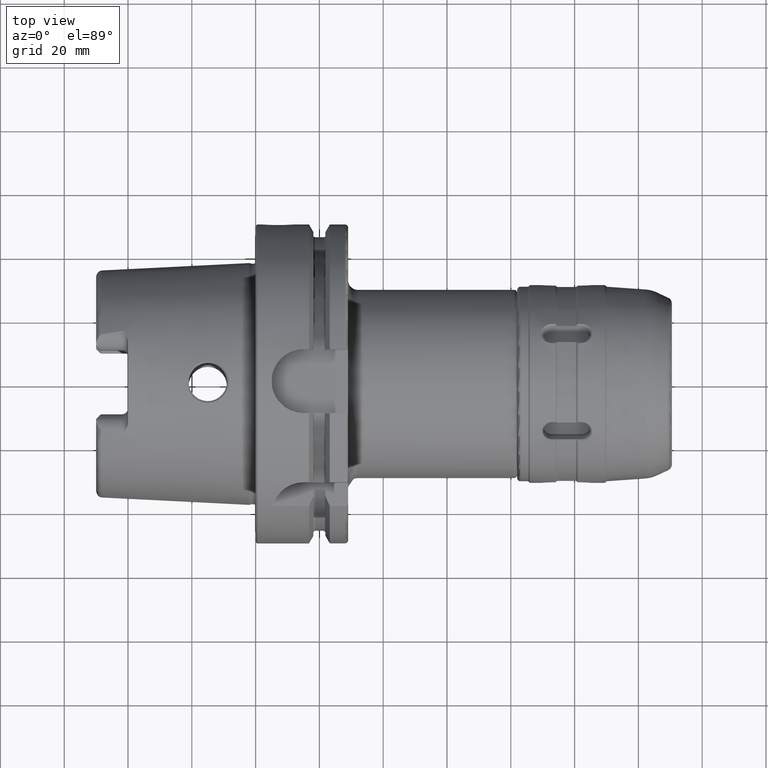
[diagram: clean part render]
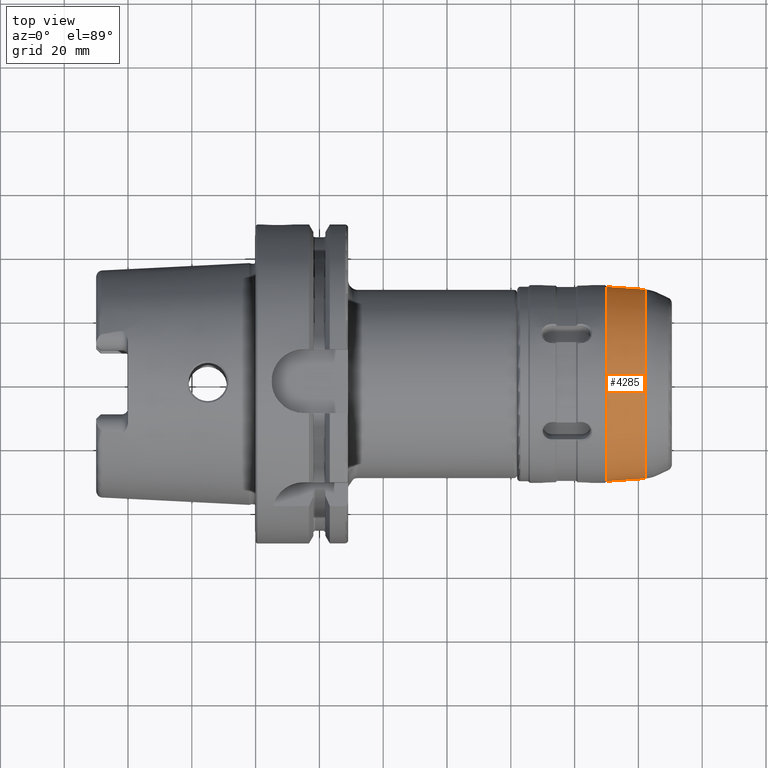
[diagram: same view with one face highlighted and labeled with its STEP entity id]
A machine part, top view. The second image highlights one B-rep face of the part: STEP entity #4285.
In plain terms, the highlighted conical surface has half-angle 4.072 deg.
Its self-contained STEP definition (entity closure, byte-faithful):
#223=CONICAL_SURFACE('',#4821,29.9991791209683,0.0710699913215307);
#573=LINE('',#9271,#814);
#814=VECTOR('',#6002,29.9991791209683);
#1100=FACE_OUTER_BOUND('',#1348,.T.);
#1348=EDGE_LOOP('',(#3954,#3955,#3956,#3957,#3958,#3959,#3960));
#1599=CIRCLE('',#4813,29.6295063174127);
#1600=CIRCLE('',#4814,29.6295063174127);
#1601=CIRCLE('',#4815,29.6295063174127);
#1606=CIRCLE('',#4822,30.5);
#1607=CIRCLE('',#4823,30.5);
#2045=VERTEX_POINT('',#9253);
#2046=VERTEX_POINT('',#9255);
#2047=VERTEX_POINT('',#9257);
#2051=VERTEX_POINT('',#9270);
#2052=VERTEX_POINT('',#9272);
#2688=EDGE_CURVE('',#2045,#2046,#1599,.T.);
#2689=EDGE_CURVE('',#2046,#2047,#1600,.T.);
#2690=EDGE_CURVE('',#2047,#2045,#1601,.T.);
#2696=EDGE_CURVE('',#2046,#2051,#573,.T.);
#2697=EDGE_CURVE('',#2051,#2052,#1606,.T.);
#2698=EDGE_CURVE('',#2052,#2051,#1607,.T.);
#3954=ORIENTED_EDGE('',*,*,#2690,.F.);
#3955=ORIENTED_EDGE('',*,*,#2689,.F.);
#3956=ORIENTED_EDGE('',*,*,#2696,.T.);
#3957=ORIENTED_EDGE('',*,*,#2697,.T.);
#3958=ORIENTED_EDGE('',*,*,#2698,.T.);
#3959=ORIENTED_EDGE('',*,*,#2696,.F.);
#3960=ORIENTED_EDGE('',*,*,#2688,.F.);
#4285=ADVANCED_FACE('',(#1100),#223,.T.);
#4813=AXIS2_PLACEMENT_3D('',#9256,#5983,#5984);
#4814=AXIS2_PLACEMENT_3D('',#9258,#5985,#5986);
#4815=AXIS2_PLACEMENT_3D('',#9259,#5987,#5988);
#4821=AXIS2_PLACEMENT_3D('',#9269,#6000,#6001);
#4822=AXIS2_PLACEMENT_3D('',#9273,#6003,#6004);
#4823=AXIS2_PLACEMENT_3D('',#9274,#6005,#6006);
#5983=DIRECTION('center_axis',(1.,0.,0.));
#5984=DIRECTION('ref_axis',(0.,-1.,3.06161699786838E-17));
#5985=DIRECTION('center_axis',(1.,0.,0.));
#5986=DIRECTION('ref_axis',(0.,-1.,3.06161699786838E-17));
#5987=DIRECTION('center_axis',(1.,0.,0.));
#5988=DIRECTION('ref_axis',(0.,-1.,3.06161699786838E-17));
#6000=DIRECTION('center_axis',(-1.,0.,0.));
#6001=DIRECTION('ref_axis',(0.,1.,0.));
#6002=DIRECTION('',(-0.997475590989153,-0.0710101780087896,-8.69623872053479E-18));
#6003=DIRECTION('center_axis',(1.,0.,0.));
#6004=DIRECTION('ref_axis',(0.,0.,-1.));
#6005=DIRECTION('center_axis',(1.,0.,0.));
#6006=DIRECTION('ref_axis',(0.,0.,-1.));
#9253=CARTESIAN_POINT('',(40.2277710722491,-3.62856800719357E-15,29.6295063174126));
#9255=CARTESIAN_POINT('',(40.2277710722491,-29.6295063174127,-3.62856800719357E-15));
#9256=CARTESIAN_POINT('Origin',(40.2277710722491,0.,-4.53571000899196E-15));
#9257=CARTESIAN_POINT('',(40.2277710722491,29.6295063174127,-1.81428400359678E-15));
#9258=CARTESIAN_POINT('Origin',(40.2277710722491,0.,-4.53571000899196E-15));
#9259=CARTESIAN_POINT('Origin',(40.2277710722491,0.,-4.53571000899196E-15));
#9269=CARTESIAN_POINT('Origin',(35.035,0.,0.));
#9270=CARTESIAN_POINT('',(28.,-30.5,-3.73517273739943E-15));
#9271=CARTESIAN_POINT('',(35.035,-29.9991791209683,-3.6738398687542E-15));
#9272=CARTESIAN_POINT('',(28.,30.5,0.));
#9273=CARTESIAN_POINT('Origin',(28.,0.,0.));
#9274=CARTESIAN_POINT('Origin',(28.,0.,0.));